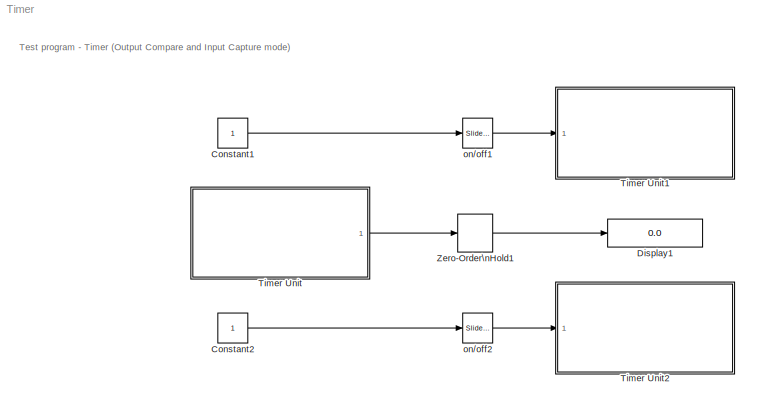
MODEL Timer
KIND model
BLOCK [Constant] Constant1
  SID = 1
BLOCK [Constant] Constant2
  SID = 2
BLOCK [Display] Display1
  Decimation = 1
  Ports = [1]
  SID = 3
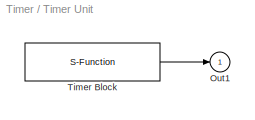
BLOCK [SubSystem] Timer Unit
  Ports = [0, 1]
  RequestExecContextInheritance = off
  SID = 10
  ShowPortLabels = none
  Tag = mcTarget_timer
BLOCK [Outport] Timer Unit/Out1
  IconDisplay = Port number
  SID = 10:1
BLOCK [S-Function] Timer Unit/Timer Block
  EnableBusSupport = off
  FunctionName = timer_sfcn_9S12
  Parameters = sampletime, timerMode
  Ports = [0, 1]
  SFcnIsStateOwnerBlock = off
  SFunctionDeploymentMode = off
  SID = 10:12
  Tag = mcTarget_timer
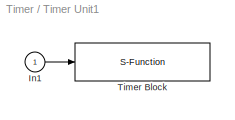
BLOCK [SubSystem] Timer Unit1
  Ports = [1]
  RequestExecContextInheritance = off
  SID = 13
  ShowPortLabels = none
  Tag = mcTarget_timer
BLOCK [Inport] Timer Unit1/In1
  IconDisplay = Port number
  SID = 13:14
BLOCK [S-Function] Timer Unit1/Timer Block
  EnableBusSupport = off
  FunctionName = timer_sfcn_9S12
  Parameters = sampletime, timerMode
  Ports = [1]
  SFcnIsStateOwnerBlock = off
  SFunctionDeploymentMode = off
  SID = 13:15
  Tag = mcTarget_timer
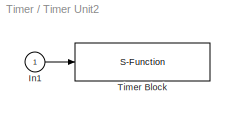
BLOCK [SubSystem] Timer Unit2
  Ports = [1]
  RequestExecContextInheritance = off
  SID = 16
  ShowPortLabels = none
  Tag = mcTarget_timer
BLOCK [Inport] Timer Unit2/In1
  IconDisplay = Port number
  SID = 16:14
BLOCK [S-Function] Timer Unit2/Timer Block
  EnableBusSupport = off
  FunctionName = timer_sfcn_9S12
  Parameters = sampletime, timerMode
  Ports = [1]
  SFcnIsStateOwnerBlock = off
  SFunctionDeploymentMode = off
  SID = 16:15
  Tag = mcTarget_timer
BLOCK [ZeroOrderHold] Zero-Order\nHold1
  SID = 7
  SampleTime = 0.1
BLOCK [Reference] on//off1  REF=simulink/Math\nOperations/Slider\nGain
  FunctionWithSeparateData = off
  Ports = [1, 1]
  RTWMemSecDataConstants = Inherit from model
  RTWMemSecDataInternal = Inherit from model
  RTWMemSecDataParameters = Inherit from model
  RTWMemSecFuncExecute = Inherit from model
  RTWMemSecFuncInitTerm = Inherit from model
  SID = 8
  ShowPortLabels = FromPortIcon
  SourceBlock = simulink/Math\nOperations/Slider\nGain
  SourceProductBaseCode = SL
  SourceProductName = Simulink
  SourceType = Slider Gain
  SystemSampleTime = -1
  gain = 0
  high = 1
  low = 0
BLOCK [Reference] on//off2  REF=simulink/Math\nOperations/Slider\nGain
  FunctionWithSeparateData = off
  Ports = [1, 1]
  RTWMemSecDataConstants = Inherit from model
  RTWMemSecDataInternal = Inherit from model
  RTWMemSecDataParameters = Inherit from model
  RTWMemSecFuncExecute = Inherit from model
  RTWMemSecFuncInitTerm = Inherit from model
  SID = 9
  ShowPortLabels = FromPortIcon
  SourceBlock = simulink/Math\nOperations/Slider\nGain
  SourceProductBaseCode = SL
  SourceProductName = Simulink
  SourceType = Slider Gain
  SystemSampleTime = -1
  gain = 0
  high = 1
  low = 0
ANNOTATION (root): Test program - Timer (Output Compare and Input Capture mode)
LINE Constant1:1 -> on//off1:1
LINE Constant2:1 -> on//off2:1
LINE Timer Unit/Timer Block:1 -> Timer Unit/Out1:1
LINE Timer Unit1/In1:1 -> Timer Unit1/Timer Block:1
LINE Timer Unit2/In1:1 -> Timer Unit2/Timer Block:1
LINE Timer Unit:1 -> Zero-Order\nHold1:1
LINE Zero-Order\nHold1:1 -> Display1:1
LINE on//off1:1 -> Timer Unit1:1
LINE on//off2:1 -> Timer Unit2:1
